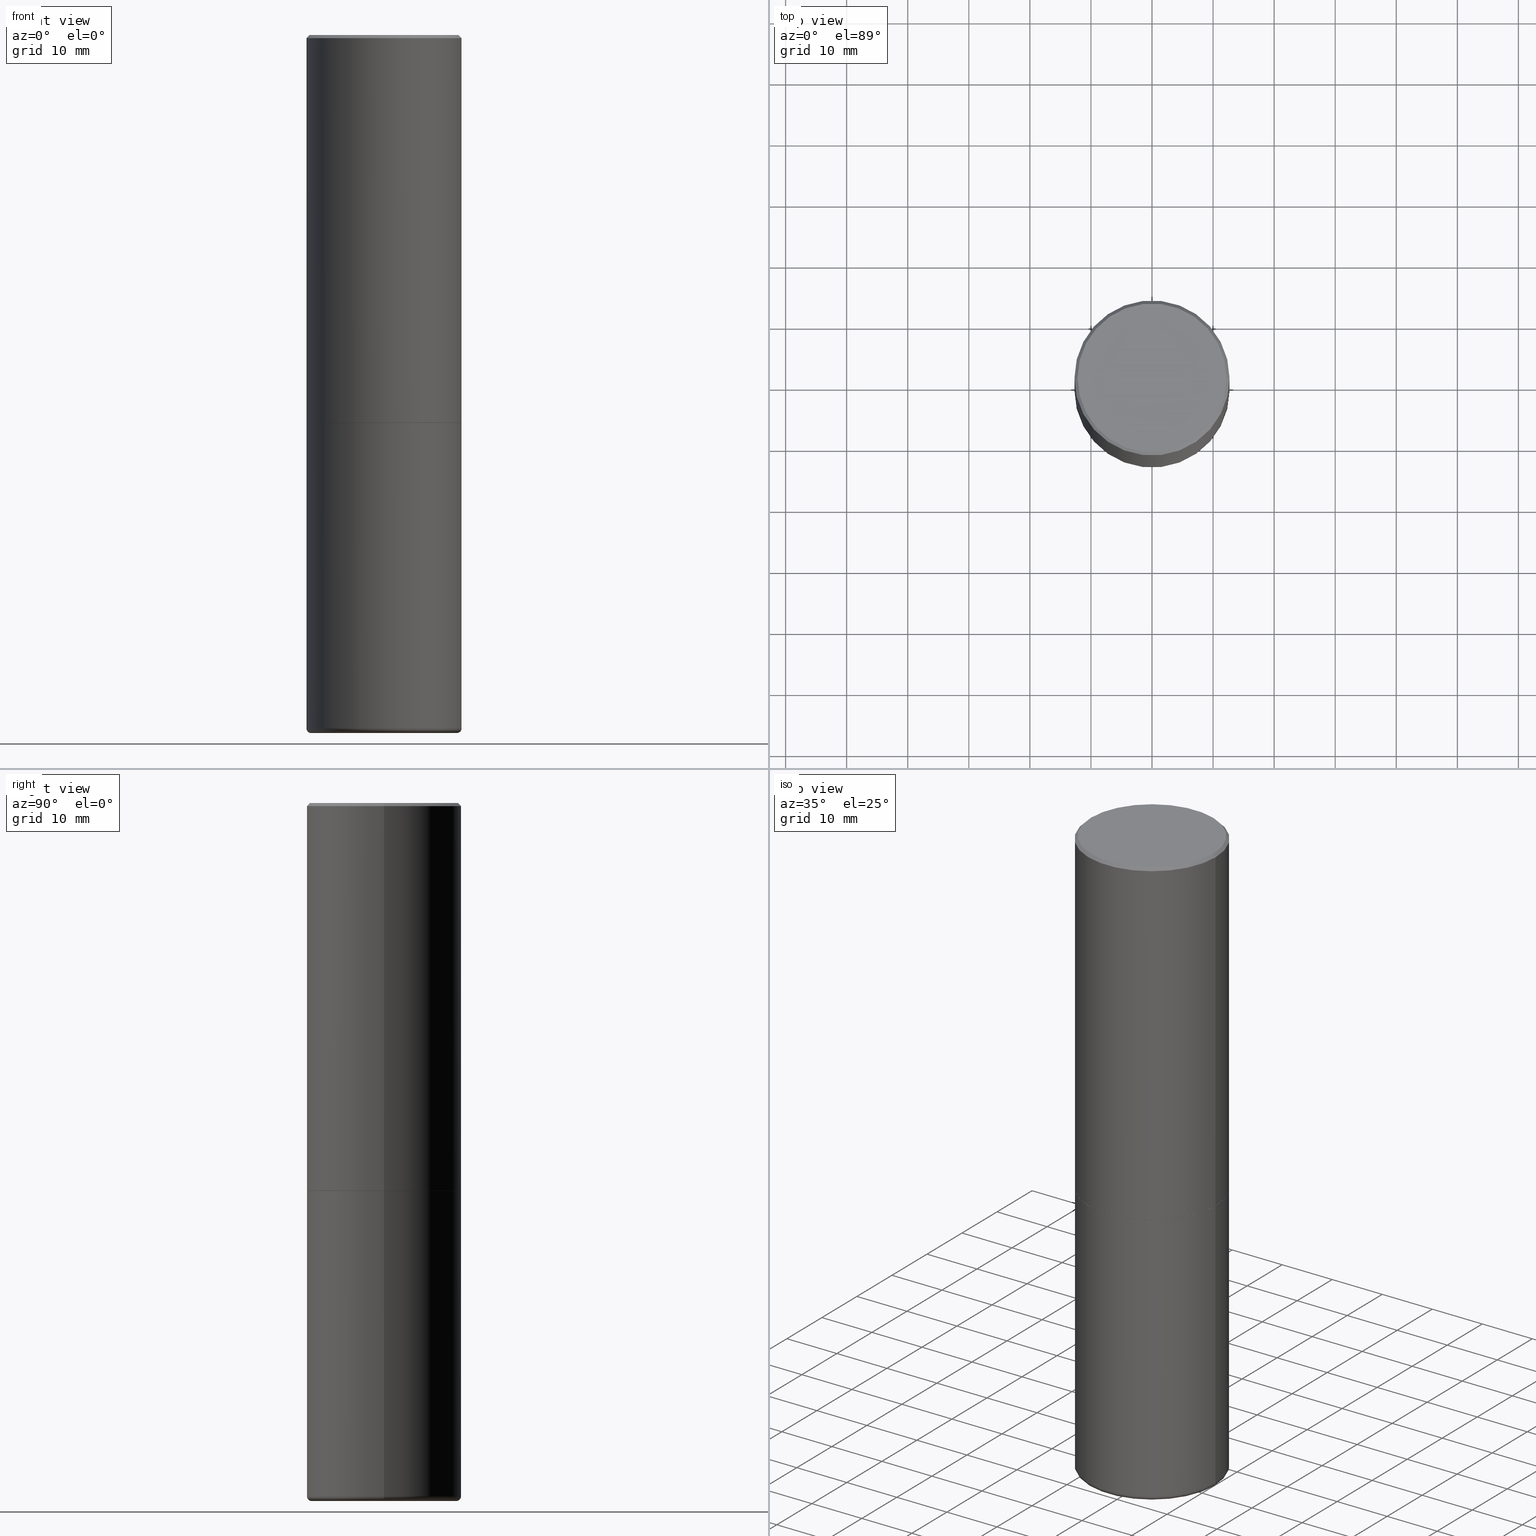
[diagram: canonical four-view strip — front | top / right | iso, engineering-drawing reading convention]
A machine part, canonical four-view strip (front | top / right | iso — engineering-drawing reading convention). The complete STEP part file that produces these views, byte-faithful:
ISO-10303-21;
HEADER;
FILE_DESCRIPTION (( 'STEP AP203' ),
    '1' );
FILE_NAME ('38572.STEP',
    '2024-03-03T05:47:36',
    ( '' ),
    ( '' ),
    'SwSTEP 2.0',
    'SolidWorks 2023',
    '' );
FILE_SCHEMA (( 'CONFIG_CONTROL_DESIGN' ));
ENDSEC;

DATA;
#1 = CARTESIAN_POINT ( 'NONE',  ( 6.113672015462842613E-29, -8.728703347107864943E-15, -2.500000000000000000 ) ) ;
#2 = FACE_OUTER_BOUND ( 'NONE', #92, .T. ) ;
#3 = AXIS2_PLACEMENT_3D ( 'NONE', #391, #166, #298 ) ;
#4 = LOCAL_TIME ( 0, 47, 36.00000000000000000, #110 ) ;
#5 = DIRECTION ( 'NONE',  ( -2.445468806185136597E-29, 3.491481338843145583E-15, 1.000000000000000000 ) ) ;
#6 = CARTESIAN_POINT ( 'NONE',  ( 0.000000000000000000, 0.000000000000000000, 0.000000000000000000 ) ) ;
#7 = AXIS2_PLACEMENT_3D ( 'NONE', #158, #259, #187 ) ;
#8 = ORIENTED_EDGE ( 'NONE', *, *, #219, .T. ) ;
#9 = DIRECTION ( 'NONE',  ( 1.000000000000000000, -6.982962677686270655E-15, 0.000000000000000000 ) ) ;
#10 = EDGE_LOOP ( 'NONE', ( #362, #201 ) ) ;
#11 = ORIENTED_EDGE ( 'NONE', *, *, #339, .F. ) ;
#12 = DIRECTION ( 'NONE',  ( -2.445468806185136597E-29, 3.491481338843145583E-15, 1.000000000000000000 ) ) ;
#13 = EDGE_CURVE ( 'NONE', #265, #364, #330, .T. ) ;
#14 = EDGE_CURVE ( 'NONE', #364, #265, #206, .T. ) ;
#15 =( GEOMETRIC_REPRESENTATION_CONTEXT ( 3 ) GLOBAL_UNCERTAINTY_ASSIGNED_CONTEXT ( ( #234 ) ) GLOBAL_UNIT_ASSIGNED_CONTEXT ( ( #160, #228, #261 ) ) REPRESENTATION_CONTEXT ( 'NONE', 'WORKASPACE' ) );
#16 = CARTESIAN_POINT ( 'NONE',  ( -0.5000000000000001110, 3.552713678800501718E-15, -2.459467545127453732E-29 ) ) ;
#17 = ORIENTED_EDGE ( 'NONE', *, *, #292, .F. ) ;
#18 = CIRCLE ( 'NONE', #223, 0.5000000000000000000 ) ;
#19 = LOCAL_TIME ( 0, 47, 36.00000000000000000, #269 ) ;
#20 = CARTESIAN_POINT ( 'NONE',  ( 1.100460962783311244E-28, -1.571166602479415374E-14, -4.499999999999999112 ) ) ;
#21 = DIRECTION ( 'NONE',  ( -2.445468806185136597E-29, 3.491481338843145583E-15, 1.000000000000000000 ) ) ;
#22 = COORDINATED_UNIVERSAL_TIME_OFFSET ( 5, 0, .BEHIND. ) ;
#23 = CARTESIAN_POINT ( 'NONE',  ( 4.890937612370299433E-31, -6.982962677686328587E-17, -0.02000000000000010797 ) ) ;
#24 = APPLICATION_PROTOCOL_DEFINITION ( 'international standard', 'config_control_design', 1994, #56 ) ;
#25 = EDGE_CURVE ( 'NONE', #336, #198, #214, .T. ) ;
#26 = PERSON_AND_ORGANIZATION_ROLE ( 'design_supplier' ) ;
#27 = FACE_OUTER_BOUND ( 'NONE', #306, .T. ) ;
#28 = AXIS2_PLACEMENT_3D ( 'NONE', #267, #73, #105 ) ;
#29 = DIRECTION ( 'NONE',  ( -6.982962677686266711E-15, -1.000000000000000000, 3.491481338843145583E-15 ) ) ;
#30 = EDGE_LOOP ( 'NONE', ( #199, #194, #11, #289 ) ) ;
#31 = LINE ( 'NONE', #389, #57 ) ;
#32 = CARTESIAN_POINT ( 'NONE',  ( 1.465753586672304986E-28, -1.048046773905407619E-14, -4.499999999999999112 ) ) ;
#33 = DATE_TIME_ROLE ( 'classification_date' ) ;
#34 = AXIS2_PLACEMENT_3D ( 'NONE', #247, #178, #345 ) ;
#35 = LINE ( 'NONE', #285, #48 ) ;
#36 = CYLINDRICAL_SURFACE ( 'NONE', #380, 0.5000000000000001110 ) ;
#37 = CARTESIAN_POINT ( 'NONE',  ( 0.000000000000000000, 0.000000000000000000, 0.000000000000000000 ) ) ;
#38 = APPROVAL ( #107, 'UNSPECIFIED' ) ;
#39 =( LENGTH_UNIT ( ) NAMED_UNIT ( * ) SI_UNIT ( $, .METRE. ) );
#40 = CIRCLE ( 'NONE', #69, 0.5000000000000000000 ) ;
#41 = DIRECTION ( 'NONE',  ( -1.000000000000000000, 6.982962677686265922E-15, 0.000000000000000000 ) ) ;
#42 = ORIENTED_EDGE ( 'NONE', *, *, #415, .T. ) ;
#43 = ORIENTED_EDGE ( 'NONE', *, *, #134, .T. ) ;
#44 = CARTESIAN_POINT ( 'NONE',  ( 0.000000000000000000, 0.000000000000000000, 0.000000000000000000 ) ) ;
#45 = ORIENTED_EDGE ( 'NONE', *, *, #370, .F. ) ;
#46 = ORIENTED_EDGE ( 'NONE', *, *, #204, .T. ) ;
#47 = ORIENTED_EDGE ( 'NONE', *, *, #273, .F. ) ;
#48 = VECTOR ( 'NONE', #156, 39.37007874015748143 ) ;
#49 = ORIENTED_EDGE ( 'NONE', *, *, #292, .T. ) ;
#50 = MECHANICAL_CONTEXT ( 'NONE', #352, 'mechanical' ) ;
#51 = PERSON_AND_ORGANIZATION ( #227, #320 ) ;
#52 = CLOSED_SHELL ( 'NONE', ( #215, #323, #413, #106, #210, #241, #346, #140 ) ) ;
#53 = APPROVAL_ROLE ( '' ) ;
#54 = DIRECTION ( 'NONE',  ( 1.000000000000000000, -6.982962677686269866E-15, 0.000000000000000000 ) ) ;
#55 = CARTESIAN_POINT ( 'NONE',  ( 0.5000000000000002220, -1.221669320461215845E-14, -2.499000000000000110 ) ) ;
#56 = APPLICATION_CONTEXT ( 'configuration controlled 3d designs of mechanical parts and assemblies' ) ;
#57 = VECTOR ( 'NONE', #360, 39.37007874015748143 ) ;
#58 = DIRECTION ( 'NONE',  ( 1.000000000000000000, -6.982962677686266711E-15, 0.000000000000000000 ) ) ;
#59 = DESIGN_CONTEXT ( 'detailed design', #56, 'design' ) ;
#60 = LINE ( 'NONE', #251, #322 ) ;
#61 = FACE_OUTER_BOUND ( 'NONE', #67, .T. ) ;
#62 = EDGE_LOOP ( 'NONE', ( #151, #103, #72, #46 ) ) ;
#63 = AXIS2_PLACEMENT_3D ( 'NONE', #104, #128, #233 ) ;
#64 = DIRECTION ( 'NONE',  ( -2.445468806185136597E-29, 3.491481338843145583E-15, 1.000000000000000000 ) ) ;
#65 = CARTESIAN_POINT ( 'NONE',  ( 0.4700000000000000289, -1.899365848330670036E-14, -4.499999999999999112 ) ) ;
#66 = CARTESIAN_POINT ( 'NONE',  ( -0.4700000000000000289, -1.226737072655638969E-14, -4.469999999999999751 ) ) ;
#67 = EDGE_LOOP ( 'NONE', ( #96, #17 ) ) ;
#68 = FACE_OUTER_BOUND ( 'NONE', #368, .T. ) ;
#69 = AXIS2_PLACEMENT_3D ( 'NONE', #255, #5, #157 ) ;
#70 = EDGE_LOOP ( 'NONE', ( #74, #135, #42, #398 ) ) ;
#71 = ORIENTED_EDGE ( 'NONE', *, *, #25, .T. ) ;
#72 = ORIENTED_EDGE ( 'NONE', *, *, #114, .T. ) ;
#73 = DIRECTION ( 'NONE',  ( -2.438088387897960049E-29, 3.491481338843145188E-15, 1.000000000000000000 ) ) ;
#74 = ORIENTED_EDGE ( 'NONE', *, *, #14, .F. ) ;
#75 = VERTEX_POINT ( 'NONE', #164 ) ;
#76 = AXIS2_PLACEMENT_3D ( 'NONE', #163, #363, #130 ) ;
#77 = CALENDAR_DATE ( 2024, 3, 3 ) ;
#78 = CARTESIAN_POINT ( 'NONE',  ( 0.5000000000000001110, -3.491481338843134539E-15, 2.438088387897968457E-29 ) ) ;
#79 = DIRECTION ( 'NONE',  ( -2.445468806185136597E-29, 3.491481338843145583E-15, 1.000000000000000000 ) ) ;
#80 = PERSON_AND_ORGANIZATION ( #227, #320 ) ;
#81 = DIRECTION ( 'NONE',  ( 1.000000000000000000, -6.982962677686269077E-15, 0.000000000000000000 ) ) ;
#82 = CIRCLE ( 'NONE', #145, 0.5000000000000002220 ) ;
#83 = CIRCLE ( 'NONE', #118, 0.5000000000000001110 ) ;
#84 = CARTESIAN_POINT ( 'NONE',  ( 6.111226546656657010E-29, -8.725211865769021935E-15, -2.499000000000000110 ) ) ;
#85 = APPROVAL_STATUS ( 'not_yet_approved' ) ;
#86 = CARTESIAN_POINT ( 'NONE',  ( 6.113672015462842613E-29, -8.728703347107864943E-15, -2.500000000000000000 ) ) ;
#87 = PRODUCT_DEFINITION_SHAPE ( 'NONE', 'NONE',  #95 ) ;
#88 = ADVANCED_FACE ( 'NONE', ( #302 ), #411, .T. ) ;
#89 = CIRCLE ( 'NONE', #406, 0.5000000000000001110 ) ;
#90 = DIRECTION ( 'NONE',  ( -2.445468806185136597E-29, 3.491481338843145583E-15, 1.000000000000000000 ) ) ;
#91 = CC_DESIGN_SECURITY_CLASSIFICATION ( #253, ( #331 ) ) ;
#92 = EDGE_LOOP ( 'NONE', ( #141, #268, #385, #101 ) ) ;
#93 = PLANE ( 'NONE',  #7 ) ;
#94 = CARTESIAN_POINT ( 'NONE',  ( 6.113672015462842613E-29, -8.728703347107864943E-15, -2.500000000000000000 ) ) ;
#95 = PRODUCT_DEFINITION ( 'UNKNOWN', '', #331, #59 ) ;
#96 = ORIENTED_EDGE ( 'NONE', *, *, #382, .F. ) ;
#97 = CYLINDRICAL_SURFACE ( 'NONE', #281, 0.5000000000000000000 ) ;
#98 = ORIENTED_EDGE ( 'NONE', *, *, #13, .T. ) ;
#99 = CARTESIAN_POINT ( 'NONE',  ( -0.5000000000000002220, -8.448070674724393209E-16, -2.499000000000000110 ) ) ;
#100 = VERTEX_POINT ( 'NONE', #260 ) ;
#101 = ORIENTED_EDGE ( 'NONE', *, *, #25, .F. ) ;
#102 = CIRCLE ( 'NONE', #115, 0.4700000000000000289 ) ;
#103 = ORIENTED_EDGE ( 'NONE', *, *, #13, .F. ) ;
#104 = CARTESIAN_POINT ( 'NONE',  ( -5.532412495976664402E-45, 7.898818803016371119E-31, 2.262311619753217762E-16 ) ) ;
#105 = DIRECTION ( 'NONE',  ( 1.000000000000000000, -6.982962677686265922E-15, 4.876176775795935793E-29 ) ) ;
#106 = ADVANCED_FACE ( 'NONE', ( #374 ), #366, .T. ) ;
#107 = APPROVAL_STATUS ( 'not_yet_approved' ) ;
#108 = CC_DESIGN_DATE_AND_TIME_ASSIGNMENT ( #378, #341, ( #95 ) ) ;
#109 = VECTOR ( 'NONE', #300, 39.37007874015748143 ) ;
#110 = COORDINATED_UNIVERSAL_TIME_OFFSET ( 5, 0, .BEHIND. ) ;
#111 = APPROVAL_STATUS ( 'not_yet_approved' ) ;
#112 = CARTESIAN_POINT ( 'NONE',  ( 0.5000000000000000000, -3.491481338843133355E-15, 2.438088387897967896E-29 ) ) ;
#113 = PERSON_AND_ORGANIZATION ( #227, #320 ) ;
#114 = EDGE_CURVE ( 'NONE', #265, #100, #161, .T. ) ;
#115 = AXIS2_PLACEMENT_3D ( 'NONE', #181, #318, #321 ) ;
#116 = AXIS2_PLACEMENT_3D ( 'NONE', #20, #136, #9 ) ;
#117 = FACE_OUTER_BOUND ( 'NONE', #231, .T. ) ;
#118 = AXIS2_PLACEMENT_3D ( 'NONE', #397, #394, #257 ) ;
#119 = CARTESIAN_POINT ( 'NONE',  ( 6.113672015462842613E-29, -8.728703347107864943E-15, -2.500000000000000000 ) ) ;
#120 = AXIS2_PLACEMENT_3D ( 'NONE', #131, #21, #404 ) ;
#121 = DIRECTION ( 'NONE',  ( -2.445468806185136597E-29, 3.491481338843145583E-15, 1.000000000000000000 ) ) ;
#122 = ORIENTED_EDGE ( 'NONE', *, *, #173, .F. ) ;
#123 = LINE ( 'NONE', #254, #169 ) ;
#124 = EDGE_LOOP ( 'NONE', ( #294, #47 ) ) ;
#125 = CARTESIAN_POINT ( 'NONE',  ( -0.4799999999999998157, 3.386736898677839197E-15, 2.262311619752982090E-16 ) ) ;
#126 = FACE_OUTER_BOUND ( 'NONE', #70, .T. ) ;
#127 = EDGE_CURVE ( 'NONE', #75, #170, #18, .T. ) ;
#128 = DIRECTION ( 'NONE',  ( -2.445468806185136597E-29, 3.491481338843145583E-15, 1.000000000000000000 ) ) ;
#129 = ORIENTED_EDGE ( 'NONE', *, *, #334, .F. ) ;
#130 = DIRECTION ( 'NONE',  ( 1.000000000000000000, -6.982962677686262766E-15, 0.000000000000000000 ) ) ;
#131 = CARTESIAN_POINT ( 'NONE',  ( 1.093124556364756005E-28, -1.560692158462886037E-14, -4.469999999999999751 ) ) ;
#132 = CC_DESIGN_DATE_AND_TIME_ASSIGNMENT ( #153, #33, ( #253 ) ) ;
#133 = ORIENTED_EDGE ( 'NONE', *, *, #284, .T. ) ;
#134 = EDGE_CURVE ( 'NONE', #329, #170, #271, .T. ) ;
#135 = ORIENTED_EDGE ( 'NONE', *, *, #311, .T. ) ;
#136 = DIRECTION ( 'NONE',  ( -2.445468806185136597E-29, 3.491481338843145583E-15, 1.000000000000000000 ) ) ;
#137 = CIRCLE ( 'NONE', #239, 0.4989999999999999991 ) ;
#138 = ORIENTED_EDGE ( 'NONE', *, *, #339, .T. ) ;
#139 = DIRECTION ( 'NONE',  ( -2.445468806185136597E-29, 3.491481338843145583E-15, 1.000000000000000000 ) ) ;
#140 = ADVANCED_FACE ( 'NONE', ( #275 ), #243, .F. ) ;
#141 = ORIENTED_EDGE ( 'NONE', *, *, #208, .F. ) ;
#142 = CALENDAR_DATE ( 2024, 3, 3 ) ;
#143 = DIRECTION ( 'NONE',  ( 0.000000000000000000, 0.000000000000000000, 1.000000000000000000 ) ) ;
#144 = ADVANCED_FACE ( 'NONE', ( #27 ), #379, .T. ) ;
#145 = AXIS2_PLACEMENT_3D ( 'NONE', #84, #79, #54 ) ;
#146 = PRODUCT_RELATED_PRODUCT_CATEGORY ( 'detail', '', ( #248 ) ) ;
#147 = CARTESIAN_POINT ( 'NONE',  ( 6.113672015462842613E-29, -8.728703347107864943E-15, -2.500000000000000000 ) ) ;
#148 = COORDINATED_UNIVERSAL_TIME_OFFSET ( 5, 0, .BEHIND. ) ;
#149 = TOROIDAL_SURFACE ( 'NONE', #359, 0.4700000000000000289, 0.02999999999999967970 ) ;
#150 = DIRECTION ( 'NONE',  ( 0.7071067811865462405, -7.319954787623251312E-15, -0.7071067811865486830 ) ) ;
#151 = ORIENTED_EDGE ( 'NONE', *, *, #311, .F. ) ;
#152 = CARTESIAN_POINT ( 'NONE',  ( 1.093124556364756005E-28, -1.560692158462886037E-14, -4.469999999999999751 ) ) ;
#153 = DATE_AND_TIME ( #412, #240 ) ;
#154 = CARTESIAN_POINT ( 'NONE',  ( 6.113672015462842613E-29, -8.728703347107864943E-15, -2.500000000000000000 ) ) ;
#155 = CONICAL_SURFACE ( 'NONE', #200, 0.4989999999999999991, 0.7853981633976873100 ) ;
#156 = DIRECTION ( 'NONE',  ( -2.445468806185136877E-29, 3.491481338843145188E-15, 1.000000000000000000 ) ) ;
#157 = DIRECTION ( 'NONE',  ( 1.000000000000000000, -6.982962677686262766E-15, 0.000000000000000000 ) ) ;
#158 = CARTESIAN_POINT ( 'NONE',  ( 6.113672015462842613E-29, -8.728703347107864943E-15, -2.500000000000000000 ) ) ;
#159 = CLOSED_SHELL ( 'NONE', ( #393, #88, #317, #144, #303, #305 ) ) ;
#160 =( CONVERSION_BASED_UNIT ( 'INCH', #264 ) LENGTH_UNIT ( ) NAMED_UNIT ( #212 ) );
#161 = LINE ( 'NONE', #293, #184 ) ;
#162 = ORIENTED_EDGE ( 'NONE', *, *, #167, .T. ) ;
#163 = CARTESIAN_POINT ( 'NONE',  ( 1.093124556364756005E-28, -1.560692158462886037E-14, -4.469999999999999751 ) ) ;
#164 = CARTESIAN_POINT ( 'NONE',  ( -0.5000000000000000000, -8.615098787067861728E-15, -2.500000000000000000 ) ) ;
#165 = ADVANCED_BREP_SHAPE_REPRESENTATION ( '38572', ( #326, #342, #262 ), #15 ) ;
#166 = DIRECTION ( 'NONE',  ( -2.445468806185136597E-29, 3.491481338843145583E-15, 1.000000000000000000 ) ) ;
#167 = EDGE_CURVE ( 'NONE', #198, #280, #410, .T. ) ;
#168 = DIRECTION ( 'NONE',  ( -1.000000000000000000, 7.105427357601001859E-15, 0.000000000000000000 ) ) ;
#169 = VECTOR ( 'NONE', #150, 39.37007874015748854 ) ;
#170 = VERTEX_POINT ( 'NONE', #381 ) ;
#171 = LOCAL_TIME ( 0, 47, 36.00000000000000000, #22 ) ;
#172 = ORIENTED_EDGE ( 'NONE', *, *, #167, .F. ) ;
#173 = EDGE_CURVE ( 'NONE', #198, #336, #82, .T. ) ;
#174 = AXIS2_PLACEMENT_3D ( 'NONE', #226, #328, #41 ) ;
#175 = LOCAL_TIME ( 0, 47, 36.00000000000000000, #211 ) ;
#176 = APPROVAL_DATE_TIME ( #242, #179 ) ;
#177 = APPROVAL_DATE_TIME ( #202, #38 ) ;
#178 = DIRECTION ( 'NONE',  ( 2.438088387897960049E-29, -3.491481338843145188E-15, -1.000000000000000000 ) ) ;
#179 = APPROVAL ( #111, 'UNSPECIFIED' ) ;
#180 = FACE_OUTER_BOUND ( 'NONE', #392, .T. ) ;
#181 = CARTESIAN_POINT ( 'NONE',  ( 1.100460962783311244E-28, -1.571166602479415374E-14, -4.499999999999999112 ) ) ;
#182 = DIRECTION ( 'NONE',  ( 1.000000000000000000, -6.982962677686213068E-15, 0.000000000000000000 ) ) ;
#183 = APPROVAL_PERSON_ORGANIZATION ( #304, #179, #53 ) ;
#184 = VECTOR ( 'NONE', #395, 39.37007874015748854 ) ;
#185 = DIRECTION ( 'NONE',  ( 1.000000000000000000, -6.982962677686266711E-15, 0.000000000000000000 ) ) ;
#186 = CONICAL_SURFACE ( 'NONE', #188, 0.5000000000000001110, 0.7853981633974466137 ) ;
#187 = DIRECTION ( 'NONE',  ( -1.000000000000000000, 6.982962677686265922E-15, -4.876176775795935793E-29 ) ) ;
#188 = AXIS2_PLACEMENT_3D ( 'NONE', #295, #225, #327 ) ;
#189 = DIRECTION ( 'NONE',  ( 1.000000000000000000, -6.982962677686267499E-15, 4.876176775795935793E-29 ) ) ;
#190 = ORIENTED_EDGE ( 'NONE', *, *, #134, .F. ) ;
#191 = VERTEX_POINT ( 'NONE', #209 ) ;
#192 = AXIS2_PLACEMENT_3D ( 'NONE', #357, #29, #182 ) ;
#193 = DIRECTION ( 'NONE',  ( 1.000000000000000000, -6.982962677686266711E-15, 4.876176775795935793E-29 ) ) ;
#194 = ORIENTED_EDGE ( 'NONE', *, *, #370, .T. ) ;
#195 = ORIENTED_EDGE ( 'NONE', *, *, #208, .T. ) ;
#196 = CYLINDRICAL_SURFACE ( 'NONE', #390, 0.5000000000000001110 ) ;
#197 = ORIENTED_EDGE ( 'NONE', *, *, #204, .F. ) ;
#198 = VERTEX_POINT ( 'NONE', #55 ) ;
#199 = ORIENTED_EDGE ( 'NONE', *, *, #382, .T. ) ;
#200 = AXIS2_PLACEMENT_3D ( 'NONE', #119, #64, #287 ) ;
#201 = ORIENTED_EDGE ( 'NONE', *, *, #127, .T. ) ;
#202 = DATE_AND_TIME ( #238, #4 ) ;
#203 = DIRECTION ( 'NONE',  ( 1.000000000000000000, 0.000000000000000000, 0.000000000000000000 ) ) ;
#204 = EDGE_CURVE ( 'NONE', #100, #280, #89, .T. ) ;
#205 = DIRECTION ( 'NONE',  ( -2.445468806185136597E-29, 3.491481338843145583E-15, 1.000000000000000000 ) ) ;
#206 = CIRCLE ( 'NONE', #63, 0.4799999999999998157 ) ;
#207 = CC_DESIGN_APPROVAL ( #179, ( #95 ) ) ;
#208 = EDGE_CURVE ( 'NONE', #236, #336, #60, .T. ) ;
#209 = CARTESIAN_POINT ( 'NONE',  ( -0.4700000000000000289, -1.221316153627502519E-14, -4.499999999999999112 ) ) ;
#210 = ADVANCED_FACE ( 'NONE', ( #279 ), #36, .T. ) ;
#211 = COORDINATED_UNIVERSAL_TIME_OFFSET ( 5, 0, .BEHIND. ) ;
#212 = DIMENSIONAL_EXPONENTS ( 1.000000000000000000, 0.000000000000000000, 0.000000000000000000, 0.000000000000000000, 0.000000000000000000, 0.000000000000000000, 0.000000000000000000 ) ;
#213 = DIRECTION ( 'NONE',  ( -0.7071067811867165487, 7.493145998870964739E-15, 0.7071067811863784858 ) ) ;
#214 = CIRCLE ( 'NONE', #348, 0.5000000000000002220 ) ;
#215 = ADVANCED_FACE ( 'NONE', ( #117 ), #155, .T. ) ;
#216 = CARTESIAN_POINT ( 'NONE',  ( -0.4989999999999999991, -5.177796641316741831E-15, -2.500000000000000000 ) ) ;
#217 = CC_DESIGN_PERSON_AND_ORGANIZATION_ASSIGNMENT ( #51, #376, ( #248 ) ) ;
#218 = VERTEX_POINT ( 'NONE', #224 ) ;
#219 = EDGE_CURVE ( 'NONE', #218, #75, #35, .T. ) ;
#220 = CARTESIAN_POINT ( 'NONE',  ( 0.5000000000000001110, -3.500078625662629868E-15, -0.02000000000000010797 ) ) ;
#221 = APPROVAL_ROLE ( '' ) ;
#222 = DIRECTION ( 'NONE',  ( 1.000000000000000000, -6.982962677686265922E-15, 0.000000000000000000 ) ) ;
#223 = AXIS2_PLACEMENT_3D ( 'NONE', #147, #244, #81 ) ;
#224 = CARTESIAN_POINT ( 'NONE',  ( -0.4999999999999998335, -1.205420790582835944E-14, -4.469999999999999751 ) ) ;
#225 = DIRECTION ( 'NONE',  ( 2.445468806185136597E-29, -3.491481338843145583E-15, -1.000000000000000000 ) ) ;
#226 = CARTESIAN_POINT ( 'NONE',  ( 4.890937612370299433E-31, -6.982962677686328587E-17, -0.02000000000000010797 ) ) ;
#227 = PERSON ( 'UNSPECIFIED', 'UNSPECIFIED', 'UNSPECIFIED', ('UNSPECIFIED'), ('UNSPECIFIED'), ('UNSPECIFIED') ) ;
#228 =( NAMED_UNIT ( * ) PLANE_ANGLE_UNIT ( ) SI_UNIT ( $, .RADIAN. ) );
#229 = VERTEX_POINT ( 'NONE', #65 ) ;
#230 = VECTOR ( 'NONE', #408, 39.37007874015748143 ) ;
#231 = EDGE_LOOP ( 'NONE', ( #263, #195, #122, #250 ) ) ;
#232 = EDGE_LOOP ( 'NONE', ( #129, #71, #162, #197 ) ) ;
#233 = DIRECTION ( 'NONE',  ( 1.000000000000000000, -6.982962677686266711E-15, 4.878011538933552085E-29 ) ) ;
#234 = UNCERTAINTY_MEASURE_WITH_UNIT (LENGTH_MEASURE( 1.000000000000000082E-05 ), #160, 'distance_accuracy_value', 'NONE');
#235 = DIRECTION ( 'NONE',  ( 7.105427357601001859E-15, 1.000000000000000000, -3.491481338843145583E-15 ) ) ;
#236 = VERTEX_POINT ( 'NONE', #216 ) ;
#237 = EDGE_CURVE ( 'NONE', #229, #329, #309, .T. ) ;
#238 = CALENDAR_DATE ( 2024, 3, 3 ) ;
#239 = AXIS2_PLACEMENT_3D ( 'NONE', #1, #121, #58 ) ;
#240 = LOCAL_TIME ( 0, 47, 36.00000000000000000, #148 ) ;
#241 = ADVANCED_FACE ( 'NONE', ( #2 ), #286, .T. ) ;
#242 = DATE_AND_TIME ( #142, #19 ) ;
#243 = PLANE ( 'NONE',  #34 ) ;
#244 = DIRECTION ( 'NONE',  ( -2.445468806185136597E-29, 3.491481338843145583E-15, 1.000000000000000000 ) ) ;
#245 = CIRCLE ( 'NONE', #299, 0.4989999999999999991 ) ;
#246 = CC_DESIGN_APPROVAL ( #315, ( #253 ) ) ;
#247 = CARTESIAN_POINT ( 'NONE',  ( 3.351822085289406364E-15, 0.4799999999999998157, -1.562795461657048383E-15 ) ) ;
#248 = PRODUCT ( '38572', '38572', '', ( #50 ) ) ;
#249 = DIRECTION ( 'NONE',  ( 1.000000000000000000, -6.982962677686267499E-15, 4.876176775795935793E-29 ) ) ;
#250 = ORIENTED_EDGE ( 'NONE', *, *, #297, .F. ) ;
#251 = CARTESIAN_POINT ( 'NONE',  ( -0.4989999999999999991, -5.183095095664965021E-15, -2.500000000000000000 ) ) ;
#252 = AXIS2_PLACEMENT_3D ( 'NONE', #86, #383, #355 ) ;
#253 = SECURITY_CLASSIFICATION ( '', '', #409 ) ;
#254 = CARTESIAN_POINT ( 'NONE',  ( 0.5000000000000001110, -3.500078625662629868E-15, -0.02000000000000010797 ) ) ;
#255 = CARTESIAN_POINT ( 'NONE',  ( 1.093124556364756005E-28, -1.560692158462886037E-14, -4.469999999999999751 ) ) ;
#256 = AXIS2_PLACEMENT_3D ( 'NONE', #32, #288, #388 ) ;
#257 = DIRECTION ( 'NONE',  ( 1.000000000000000000, -6.982962677686265922E-15, 0.000000000000000000 ) ) ;
#258 = EDGE_CURVE ( 'NONE', #170, #75, #276, .T. ) ;
#259 = DIRECTION ( 'NONE',  ( 2.438088387897960049E-29, -3.491481338843145188E-15, -1.000000000000000000 ) ) ;
#260 = CARTESIAN_POINT ( 'NONE',  ( -0.5000000000000001110, 3.421651712066270452E-15, -0.02000000000000010797 ) ) ;
#261 =( NAMED_UNIT ( * ) SI_UNIT ( $, .STERADIAN. ) SOLID_ANGLE_UNIT ( ) );
#262 = AXIS2_PLACEMENT_3D ( 'NONE', #344, #143, #203 ) ;
#263 = ORIENTED_EDGE ( 'NONE', *, *, #278, .T. ) ;
#264 = LENGTH_MEASURE_WITH_UNIT ( LENGTH_MEASURE( 0.02539999999999999897 ), #39 );
#265 = VERTEX_POINT ( 'NONE', #125 ) ;
#266 = ORIENTED_EDGE ( 'NONE', *, *, #415, .F. ) ;
#267 = CARTESIAN_POINT ( 'NONE',  ( 6.113672015462842613E-29, -8.728703347107864943E-15, -2.500000000000000000 ) ) ;
#268 = ORIENTED_EDGE ( 'NONE', *, *, #273, .T. ) ;
#269 = COORDINATED_UNIVERSAL_TIME_OFFSET ( 5, 0, .BEHIND. ) ;
#270 = VECTOR ( 'NONE', #312, 39.37007874015748143 ) ;
#271 = LINE ( 'NONE', #112, #270 ) ;
#272 = CC_DESIGN_APPROVAL ( #38, ( #331 ) ) ;
#273 = EDGE_CURVE ( 'NONE', #236, #417, #137, .T. ) ;
#274 = APPROVAL_ROLE ( '' ) ;
#275 = FACE_OUTER_BOUND ( 'NONE', #365, .T. ) ;
#276 = CIRCLE ( 'NONE', #340, 0.5000000000000000000 ) ;
#277 = PERSON_AND_ORGANIZATION ( #227, #320 ) ;
#278 = EDGE_CURVE ( 'NONE', #417, #236, #245, .T. ) ;
#279 = FACE_OUTER_BOUND ( 'NONE', #232, .T. ) ;
#280 = VERTEX_POINT ( 'NONE', #220 ) ;
#281 = AXIS2_PLACEMENT_3D ( 'NONE', #37, #139, #193 ) ;
#282 = APPROVAL_DATE_TIME ( #316, #315 ) ;
#283 = DIRECTION ( 'NONE',  ( -2.445468806185136597E-29, 3.491481338843145583E-15, 1.000000000000000000 ) ) ;
#284 = EDGE_CURVE ( 'NONE', #218, #329, #40, .T. ) ;
#285 = CARTESIAN_POINT ( 'NONE',  ( -0.5000000000000000000, 3.552713678800500929E-15, -2.459467545127452891E-29 ) ) ;
#286 = CONICAL_SURFACE ( 'NONE', #252, 0.4989999999999999991, 0.7853981633976873100 ) ;
#287 = DIRECTION ( 'NONE',  ( 1.000000000000000000, -6.982962677686266711E-15, 0.000000000000000000 ) ) ;
#288 = DIRECTION ( 'NONE',  ( 2.438088387897960049E-29, -3.491481338843145188E-15, -1.000000000000000000 ) ) ;
#289 = ORIENTED_EDGE ( 'NONE', *, *, #237, .F. ) ;
#290 = AXIS2_PLACEMENT_3D ( 'NONE', #66, #235, #168 ) ;
#291 = PLANE ( 'NONE',  #28 ) ;
#292 = EDGE_CURVE ( 'NONE', #191, #229, #102, .T. ) ;
#293 = CARTESIAN_POINT ( 'NONE',  ( -0.5000000000000001110, 3.421651712066270452E-15, -0.02000000000000010797 ) ) ;
#294 = ORIENTED_EDGE ( 'NONE', *, *, #278, .F. ) ;
#295 = CARTESIAN_POINT ( 'NONE',  ( 4.890937612370299433E-31, -6.982962677686328587E-17, -0.02000000000000010797 ) ) ;
#296 = ORIENTED_EDGE ( 'NONE', *, *, #173, .T. ) ;
#297 = EDGE_CURVE ( 'NONE', #417, #198, #31, .T. ) ;
#298 = DIRECTION ( 'NONE',  ( 1.000000000000000000, -6.982962677686266711E-15, 4.878011538933552085E-29 ) ) ;
#299 = AXIS2_PLACEMENT_3D ( 'NONE', #94, #387, #185 ) ;
#300 = DIRECTION ( 'NONE',  ( -2.445468806185136877E-29, 3.491481338843145188E-15, 1.000000000000000000 ) ) ;
#301 = APPROVAL_PERSON_ORGANIZATION ( #277, #315, #221 ) ;
#302 = FACE_OUTER_BOUND ( 'NONE', #30, .T. ) ;
#303 = ADVANCED_FACE ( 'NONE', ( #180 ), #149, .T. ) ;
#304 = PERSON_AND_ORGANIZATION ( #227, #320 ) ;
#305 = ADVANCED_FACE ( 'NONE', ( #61 ), #358, .T. ) ;
#306 = EDGE_LOOP ( 'NONE', ( #343, #133, #43, #361 ) ) ;
#307 = ORIENTED_EDGE ( 'NONE', *, *, #258, .F. ) ;
#308 = PERSON_AND_ORGANIZATION_ROLE ( 'creator' ) ;
#309 = CIRCLE ( 'NONE', #192, 0.02999999999999967970 ) ;
#310 = PERSON_AND_ORGANIZATION_ROLE ( 'creator' ) ;
#311 = EDGE_CURVE ( 'NONE', #364, #280, #123, .T. ) ;
#312 = DIRECTION ( 'NONE',  ( -2.445468806185136877E-29, 3.491481338843145188E-15, 1.000000000000000000 ) ) ;
#313 = DIRECTION ( 'NONE',  ( 1.000000000000000000, -6.982962677686266711E-15, 4.883557194083112901E-29 ) ) ;
#314 = CIRCLE ( 'NONE', #290, 0.02999999999999967970 ) ;
#315 = APPROVAL ( #85, 'UNSPECIFIED' ) ;
#316 = DATE_AND_TIME ( #354, #175 ) ;
#317 = ADVANCED_FACE ( 'NONE', ( #416 ), #93, .F. ) ;
#318 = DIRECTION ( 'NONE',  ( -2.445468806185136597E-29, 3.491481338843145583E-15, 1.000000000000000000 ) ) ;
#319 = DIRECTION ( 'NONE',  ( -2.445468806185136597E-29, 3.491481338843145583E-15, 1.000000000000000000 ) ) ;
#320 = ORGANIZATION ( 'UNSPECIFIED', 'UNSPECIFIED', '' ) ;
#321 = DIRECTION ( 'NONE',  ( 1.000000000000000000, -6.982962677686270655E-15, 0.000000000000000000 ) ) ;
#322 = VECTOR ( 'NONE', #213, 39.37007874015748143 ) ;
#323 = ADVANCED_FACE ( 'NONE', ( #68 ), #196, .T. ) ;
#324 = DIRECTION ( 'NONE',  ( 1.000000000000000000, -6.982962677686269077E-15, 0.000000000000000000 ) ) ;
#325 = FACE_OUTER_BOUND ( 'NONE', #372, .T. ) ;
#326 = MANIFOLD_SOLID_BREP ( 'Body-Move/Copy2[1]', #159 ) ;
#327 = DIRECTION ( 'NONE',  ( -1.000000000000000000, 6.982962677686265922E-15, 0.000000000000000000 ) ) ;
#328 = DIRECTION ( 'NONE',  ( 2.445468806185136597E-29, -3.491481338843145583E-15, -1.000000000000000000 ) ) ;
#329 = VERTEX_POINT ( 'NONE', #337 ) ;
#330 = CIRCLE ( 'NONE', #3, 0.4799999999999998157 ) ;
#331 = PRODUCT_DEFINITION_FORMATION_WITH_SPECIFIED_SOURCE ( 'ANY', '', #248, .NOT_KNOWN. ) ;
#332 = CC_DESIGN_PERSON_AND_ORGANIZATION_ASSIGNMENT ( #377, #26, ( #331 ) ) ;
#333 = LINE ( 'NONE', #16, #109 ) ;
#334 = EDGE_CURVE ( 'NONE', #336, #100, #333, .T. ) ;
#335 = DIRECTION ( 'NONE',  ( 1.000000000000000000, -6.982962677686269866E-15, 0.000000000000000000 ) ) ;
#336 = VERTEX_POINT ( 'NONE', #99 ) ;
#337 = CARTESIAN_POINT ( 'NONE',  ( 0.4999999999999998335, -1.909840292347199373E-14, -4.469999999999999751 ) ) ;
#338 = ORIENTED_EDGE ( 'NONE', *, *, #237, .T. ) ;
#339 = EDGE_CURVE ( 'NONE', #329, #218, #375, .T. ) ;
#340 = AXIS2_PLACEMENT_3D ( 'NONE', #154, #319, #324 ) ;
#341 = DATE_TIME_ROLE ( 'creation_date' ) ;
#342 = MANIFOLD_SOLID_BREP ( 'Body-Move/Copy2[2]', #52 ) ;
#343 = ORIENTED_EDGE ( 'NONE', *, *, #219, .F. ) ;
#344 = CARTESIAN_POINT ( 'NONE',  ( 0.000000000000000000, 0.000000000000000000, 0.000000000000000000 ) ) ;
#345 = DIRECTION ( 'NONE',  ( -1.000000000000000000, 6.982962677686265922E-15, -4.876176775795935793E-29 ) ) ;
#346 = ADVANCED_FACE ( 'NONE', ( #403 ), #291, .F. ) ;
#347 = PERSON_AND_ORGANIZATION_ROLE ( 'classification_officer' ) ;
#348 = AXIS2_PLACEMENT_3D ( 'NONE', #401, #371, #335 ) ;
#349 = CC_DESIGN_PERSON_AND_ORGANIZATION_ASSIGNMENT ( #80, #310, ( #331 ) ) ;
#350 = DIRECTION ( 'NONE',  ( 1.000000000000000000, -6.982962677686266711E-15, 4.876176775795935793E-29 ) ) ;
#351 = CARTESIAN_POINT ( 'NONE',  ( 0.000000000000000000, 0.000000000000000000, 0.000000000000000000 ) ) ;
#352 = APPLICATION_CONTEXT ( 'configuration controlled 3d designs of mechanical parts and assemblies' ) ;
#353 = ORIENTED_EDGE ( 'NONE', *, *, #14, .T. ) ;
#354 = CALENDAR_DATE ( 2024, 3, 3 ) ;
#355 = DIRECTION ( 'NONE',  ( 1.000000000000000000, -6.982962677686266711E-15, 0.000000000000000000 ) ) ;
#356 = CIRCLE ( 'NONE', #116, 0.4700000000000000289 ) ;
#357 = CARTESIAN_POINT ( 'NONE',  ( 0.4700000000000000289, -1.888891404314141014E-14, -4.469999999999999751 ) ) ;
#358 = PLANE ( 'NONE',  #256 ) ;
#359 = AXIS2_PLACEMENT_3D ( 'NONE', #152, #283, #313 ) ;
#360 = DIRECTION ( 'NONE',  ( 0.7071067811867165487, -2.468850131084027659E-15, 0.7071067811863784858 ) ) ;
#361 = ORIENTED_EDGE ( 'NONE', *, *, #127, .F. ) ;
#362 = ORIENTED_EDGE ( 'NONE', *, *, #258, .T. ) ;
#363 = DIRECTION ( 'NONE',  ( -2.445468806185136597E-29, 3.491481338843145583E-15, 1.000000000000000000 ) ) ;
#364 = VERTEX_POINT ( 'NONE', #373 ) ;
#365 = EDGE_LOOP ( 'NONE', ( #98, #353 ) ) ;
#366 = CONICAL_SURFACE ( 'NONE', #174, 0.5000000000000001110, 0.7853981633974466137 ) ;
#367 = ORIENTED_EDGE ( 'NONE', *, *, #334, .T. ) ;
#368 = EDGE_LOOP ( 'NONE', ( #296, #367, #266, #172 ) ) ;
#369 = CARTESIAN_POINT ( 'NONE',  ( 0.4989999999999999991, -1.221320172327331228E-14, -2.500000000000000000 ) ) ;
#370 = EDGE_CURVE ( 'NONE', #191, #218, #314, .T. ) ;
#371 = DIRECTION ( 'NONE',  ( -2.445468806185136597E-29, 3.491481338843145583E-15, 1.000000000000000000 ) ) ;
#372 = EDGE_LOOP ( 'NONE', ( #138, #8, #307, #190 ) ) ;
#373 = CARTESIAN_POINT ( 'NONE',  ( 0.4799999999999998157, -3.396558832296481310E-15, 2.262311619753453927E-16 ) ) ;
#374 = FACE_OUTER_BOUND ( 'NONE', #62, .T. ) ;
#375 = CIRCLE ( 'NONE', #76, 0.5000000000000000000 ) ;
#376 = PERSON_AND_ORGANIZATION_ROLE ( 'design_owner' ) ;
#377 = PERSON_AND_ORGANIZATION ( #227, #320 ) ;
#378 = DATE_AND_TIME ( #77, #171 ) ;
#379 = CYLINDRICAL_SURFACE ( 'NONE', #399, 0.5000000000000000000 ) ;
#380 = AXIS2_PLACEMENT_3D ( 'NONE', #6, #90, #249 ) ;
#381 = CARTESIAN_POINT ( 'NONE',  ( 0.5000000000000000000, -1.222018468595099830E-14, -2.500000000000000000 ) ) ;
#382 = EDGE_CURVE ( 'NONE', #229, #191, #356, .T. ) ;
#383 = DIRECTION ( 'NONE',  ( -2.445468806185136597E-29, 3.491481338843145583E-15, 1.000000000000000000 ) ) ;
#384 = CC_DESIGN_PERSON_AND_ORGANIZATION_ASSIGNMENT ( #113, #347, ( #253 ) ) ;
#385 = ORIENTED_EDGE ( 'NONE', *, *, #297, .T. ) ;
#386 = DIRECTION ( 'NONE',  ( -2.445468806185136597E-29, 3.491481338843145583E-15, 1.000000000000000000 ) ) ;
#387 = DIRECTION ( 'NONE',  ( -2.445468806185136597E-29, 3.491481338843145583E-15, 1.000000000000000000 ) ) ;
#388 = DIRECTION ( 'NONE',  ( -1.000000000000000000, 6.982962677686265922E-15, -4.876176775795935793E-29 ) ) ;
#389 = CARTESIAN_POINT ( 'NONE',  ( 0.4989999999999999991, -1.221320172327331228E-14, -2.500000000000000000 ) ) ;
#390 = AXIS2_PLACEMENT_3D ( 'NONE', #44, #12, #189 ) ;
#391 = CARTESIAN_POINT ( 'NONE',  ( -5.532412495976664402E-45, 7.898818803016371119E-31, 2.262311619753217762E-16 ) ) ;
#392 = EDGE_LOOP ( 'NONE', ( #45, #49, #338, #396 ) ) ;
#393 = ADVANCED_FACE ( 'NONE', ( #325 ), #97, .T. ) ;
#394 = DIRECTION ( 'NONE',  ( -2.445468806185136597E-29, 3.491481338843145583E-15, 1.000000000000000000 ) ) ;
#395 = DIRECTION ( 'NONE',  ( -0.7071067811865462405, 2.468850131082243650E-15, -0.7071067811865486830 ) ) ;
#396 = ORIENTED_EDGE ( 'NONE', *, *, #284, .F. ) ;
#397 = CARTESIAN_POINT ( 'NONE',  ( 4.890937612370299433E-31, -6.982962677686328587E-17, -0.02000000000000010797 ) ) ;
#398 = ORIENTED_EDGE ( 'NONE', *, *, #114, .F. ) ;
#399 = AXIS2_PLACEMENT_3D ( 'NONE', #351, #205, #350 ) ;
#400 = APPLICATION_PROTOCOL_DEFINITION ( 'international standard', 'config_control_design', 1994, #352 ) ;
#401 = CARTESIAN_POINT ( 'NONE',  ( 6.111226546656657010E-29, -8.725211865769021935E-15, -2.499000000000000110 ) ) ;
#402 = CC_DESIGN_PERSON_AND_ORGANIZATION_ASSIGNMENT ( #407, #308, ( #95 ) ) ;
#403 = FACE_OUTER_BOUND ( 'NONE', #124, .T. ) ;
#404 = DIRECTION ( 'NONE',  ( 1.000000000000000000, -6.982962677686266711E-15, 4.883557194083112901E-29 ) ) ;
#405 = PERSON_AND_ORGANIZATION ( #227, #320 ) ;
#406 = AXIS2_PLACEMENT_3D ( 'NONE', #23, #386, #222 ) ;
#407 = PERSON_AND_ORGANIZATION ( #227, #320 ) ;
#408 = DIRECTION ( 'NONE',  ( -2.445468806185136877E-29, 3.491481338843145188E-15, 1.000000000000000000 ) ) ;
#409 = SECURITY_CLASSIFICATION_LEVEL ( 'unclassified' ) ;
#410 = LINE ( 'NONE', #78, #230 ) ;
#411 = TOROIDAL_SURFACE ( 'NONE', #120, 0.4700000000000000289, 0.02999999999999967970 ) ;
#412 = CALENDAR_DATE ( 2024, 3, 3 ) ;
#413 = ADVANCED_FACE ( 'NONE', ( #126 ), #186, .T. ) ;
#414 = APPROVAL_PERSON_ORGANIZATION ( #405, #38, #274 ) ;
#415 = EDGE_CURVE ( 'NONE', #280, #100, #83, .T. ) ;
#416 = FACE_OUTER_BOUND ( 'NONE', #10, .T. ) ;
#417 = VERTEX_POINT ( 'NONE', #369 ) ;
#418 = SHAPE_DEFINITION_REPRESENTATION ( #87, #165 ) ;
ENDSEC;
END-ISO-10303-21;
